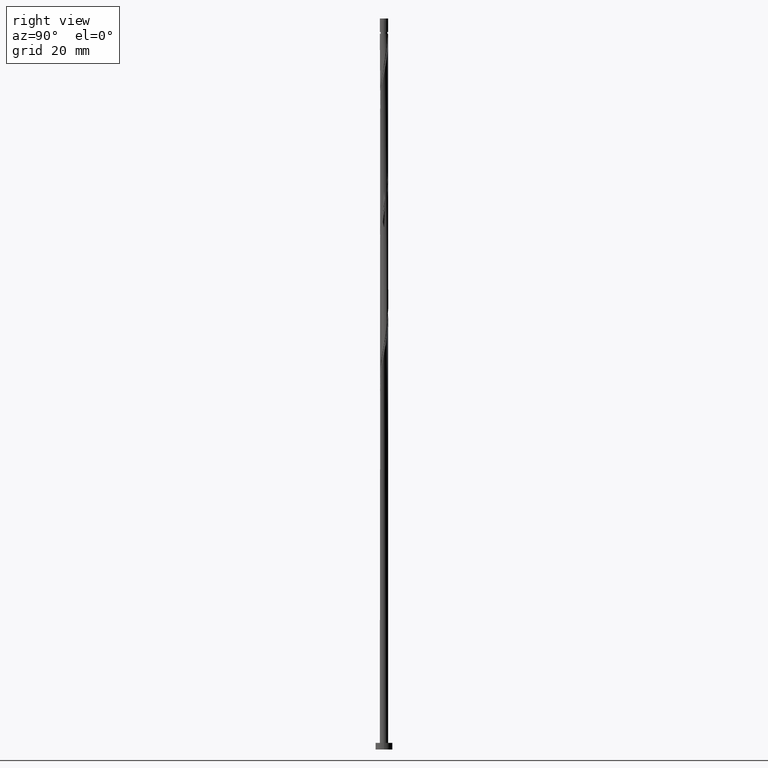
[diagram: clean part render]
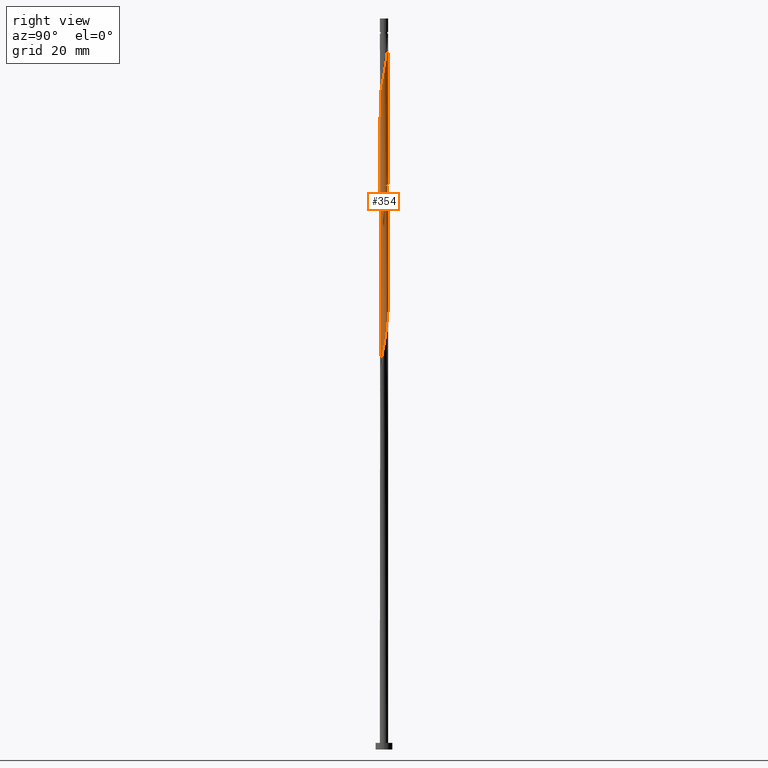
[diagram: same view with one face highlighted and labeled with its STEP entity id]
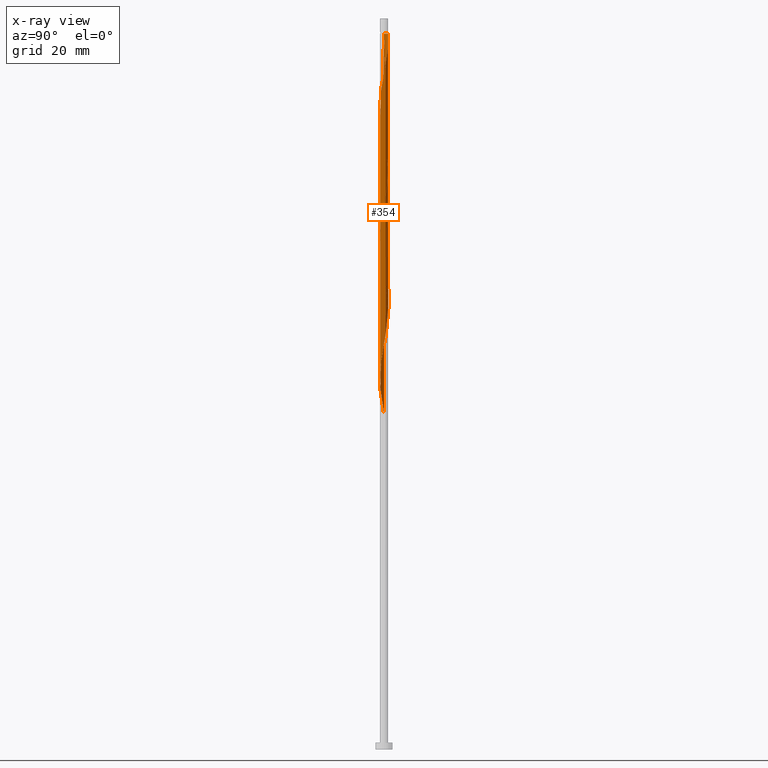
[diagram: x-ray of the same camera — body ghosted, the highlighted face saturated]
A machine part, right view. The second image highlights one B-rep face of the part: STEP entity #354.
The next image is the same camera in x-ray: the body ghosted, the highlighted face saturated — about 0% of this face is hidden behind the body in this view.
In plain terms, the highlighted cylindrical surface (bore or boss wall) has radius 1.25 mm, axis along (-0, -0, -1).
Its self-contained STEP definition (entity closure, byte-faithful):
#4 = CARTESIAN_POINT ( 'NONE',  ( -1.233997229160461506, 0.2505738245793969754, 140.4429008443030682 ) ) ;
#12 = CARTESIAN_POINT ( 'NONE',  ( 1.250000000000000666, 9.534410814969982364E-16, 162.6041560535283281 ) ) ;
#13 = CIRCLE ( 'NONE', #498, 1.249999999999986011 ) ;
#16 = CARTESIAN_POINT ( 'NONE',  ( -0.9985149540873560214, -0.7519759879570131478, 146.0518752032774614 ) ) ;
#23 = CARTESIAN_POINT ( 'NONE',  ( 1.209097744789171758, 0.3515950037838725395, 122.8146957160979582 ) ) ;
#26 = DIRECTION ( 'NONE',  ( -0.000000000000000000, -0.000000000000000000, -1.000000000000000000 ) ) ;
#32 = CARTESIAN_POINT ( 'NONE',  ( 0.3490314803447899239, -1.200282060904154680, 112.3980290494312868 ) ) ;
#41 = CARTESIAN_POINT ( 'NONE',  ( 1.186085250128970037, -0.3945906479207280659, 118.8082854596876814 ) ) ;
#48 =( BOUNDED_CURVE ( )  B_SPLINE_CURVE ( 2, ( #60, #718, #1391, #325, #857, #1277, #695, #1088, #1418, #1283, #1432, #1065, #279, #1189, #565, #1083, #1045, #295, #1624, #1313, #665, #1044, #914, #795, #264, #619, #1142, #266, #12 ),
 .UNSPECIFIED., .F., .T. ) 
 B_SPLINE_CURVE_WITH_KNOTS ( ( 3, 2, 2, 2, 2, 2, 2, 2, 2, 2, 2, 2, 2, 2, 3 ),
 ( 0.4295271625973832164, 0.4326923076923077094, 0.4423076923076922906, 0.4519230769230769273, 0.4615384615384615641, 0.4711538461538461453, 0.4807692307692307820, 0.4903846153846153633, 0.5000000000000000000, 0.5096153846153845812, 0.5192307692307692735, 0.5288461538461538547, 0.5384615384615384359, 0.5480769230769231282, 0.5545271625973832164 ),
 .UNSPECIFIED. ) 
 CURVE ( )  GEOMETRIC_REPRESENTATION_ITEM ( )  RATIONAL_B_SPLINE_CURVE ( ( 0.9061636035683098278, 0.9069090390690984771, 0.9090909090909551349, 0.9024626128164584538, 0.9090909090909551349, 0.9024626128164584538, 0.9090909090909551349, 0.9024626128164584538, 0.9090909090909551349, 0.9024626128164584538, 0.9090909090909551349, 0.9024626128164584538, 0.9090909090909551349, 0.9024626128164584538, 0.9090909090909551349, 0.9024626128164584538, 0.9090909090909551349, 0.9024626128164584538, 0.9090909090909551349, 0.9024626128164584538, 0.9090909090909551349, 0.9024626128164584538, 0.9090909090909551349, 0.9024626128164584538, 0.9090909090909551349, 0.9024626128164584538, 0.9090909090909551349, 0.9046444828383151116, 0.9061636035683098278 ) ) 
 REPRESENTATION_ITEM ( '' )  );
#58 = CARTESIAN_POINT ( 'NONE',  ( -1.250000000000000666, -1.491854868695303230E-15, 100.1041560535283423 ) ) ;
#60 = CARTESIAN_POINT ( 'NONE',  ( -1.250000000000000666, 8.375325578640295840E-16, 183.4374893868616141 ) ) ;
#64 = CARTESIAN_POINT ( 'NONE',  ( -1.250000000000000000, 0.000000000000000000, 217.9000000000000057 ) ) ;
#86 = CARTESIAN_POINT ( 'NONE',  ( 0.6718720440307895947, -1.064952749933035570, 194.9300803314825714 ) ) ;
#112 = CARTESIAN_POINT ( 'NONE',  ( 1.246051491411264145, 0.09927578129518525862, 202.1416187930209958 ) ) ;
#120 = CARTESIAN_POINT ( 'NONE',  ( 0.7574990085993099642, -1.005848723770679909, 156.4685418699441470 ) ) ;
#126 = CARTESIAN_POINT ( 'NONE',  ( 0.9762028196098186950, -0.7953392094734688111, 158.0711059725082066 ) ) ;
#132 = CARTESIAN_POINT ( 'NONE',  ( -0.9762028196098191390, 0.7953392094734682560, 137.2377726391748638 ) ) ;
#141 = CARTESIAN_POINT ( 'NONE',  ( -0.3974887887239260675, -1.194796663026319816, 150.0582854596876814 ) ) ;
#144 = DIRECTION ( 'NONE',  ( -1.000000000000000000, 0.000000000000000000, 0.000000000000000000 ) ) ;
#150 = CARTESIAN_POINT ( 'NONE',  ( 0.4947721086058742834, -1.157901966353689138, 113.1993111007133308 ) ) ;
#162 = EDGE_CURVE ( 'NONE', #741, #1337, #13, .T. ) ;
#184 = CARTESIAN_POINT ( 'NONE',  ( -0.2487468592766566011, -1.225000000000000089, 109.1929008443030966 ) ) ;
#190 = CARTESIAN_POINT ( 'NONE',  ( -0.3490314803447907566, -1.200282060904156012, 189.3211059725082350 ) ) ;
#201 = CARTESIAN_POINT ( 'NONE',  ( 1.209097744789172424, -0.3515950037838746489, 199.7377726391748638 ) ) ;
#211 = CARTESIAN_POINT ( 'NONE',  ( -0.05164296112715973525, -1.248932746214151956, 190.9236700750722662 ) ) ;
#212 = VERTEX_POINT ( 'NONE', #1428 ) ;
#243 = CARTESIAN_POINT ( 'NONE',  ( 0.5346804163773575258, -1.129874706479678581, 194.1287982802004990 ) ) ;
#244 = CYLINDRICAL_SURFACE ( 'NONE', #1056, 1.250000000000000000 ) ;
#249 = CARTESIAN_POINT ( 'NONE',  ( 0.6718720440307899278, 1.064952749933034015, 127.6223880237902364 ) ) ;
#259 = CARTESIAN_POINT ( 'NONE',  ( 1.138173271097478345, -0.5386074712620577687, 159.6736700750722662 ) ) ;
#264 = CARTESIAN_POINT ( 'NONE',  ( 1.149459557334893578, 0.4911646628692576400, 165.2826444340466594 ) ) ;
#266 = CARTESIAN_POINT ( 'NONE',  ( 1.250000000000000000, 0.1015705481713068542, 163.1438567908766402 ) ) ;
#270 = CARTESIAN_POINT ( 'NONE',  ( -0.5346804163773577478, -1.129874706479676583, 149.2570034084056942 ) ) ;
#279 = CARTESIAN_POINT ( 'NONE',  ( -0.3490314803447899794, 1.200282060904154680, 174.8980290494313010 ) ) ;
#281 = CARTESIAN_POINT ( 'NONE',  ( 0.9072085382940966447, 0.8732176539593845543, 126.0198239212261484 ) ) ;
#283 = CARTESIAN_POINT ( 'NONE',  ( 1.250000000000000000, 1.530808498934191571E-16, 217.9000000000000057 ) ) ;
#290 = CARTESIAN_POINT ( 'NONE',  ( -1.233601749225617716, -0.2018086328864490409, 142.8467469981493139 ) ) ;
#295 = CARTESIAN_POINT ( 'NONE',  ( 0.3974887887239262896, 1.194796663026319594, 170.8916187930209958 ) ) ;
#299 = CARTESIAN_POINT ( 'NONE',  ( 0.8668509141045649402, -0.9005939666220741380, 115.6031572545594770 ) ) ;
#307 = CARTESIAN_POINT ( 'NONE',  ( 0.7574990085993099642, -1.005848723770679909, 114.8018752032774472 ) ) ;
#314 = CARTESIAN_POINT ( 'NONE',  ( -1.250000000000000000, -0.1015705481713088942, 100.6438567908766402 ) ) ;
#315 = VECTOR ( 'NONE', #1041, 1000.000000000000000 ) ;
#317 = VECTOR ( 'NONE', #544, 1000.000000000000000 ) ;
#319 = CARTESIAN_POINT ( 'NONE',  ( -1.186085250128971591, -0.3945906479207275663, 182.9108495622517694 ) ) ;
#323 = CARTESIAN_POINT ( 'NONE',  ( 0.9762028196098186950, -0.7953392094734688111, 116.4044393058415494 ) ) ;
#325 = CARTESIAN_POINT ( 'NONE',  ( -1.233997229160461506, 0.2505738245793969754, 182.1095675109697538 ) ) ;
#328 = CARTESIAN_POINT ( 'NONE',  ( 0.6261355586025936226, 1.081875345062185190, 208.5518752032774330 ) ) ;
#329 = ORIENTED_EDGE ( 'NONE', *, *, #162, .T. ) ;
#334 = CARTESIAN_POINT ( 'NONE',  ( -0.7895402911624430642, -0.9690852019462093958, 105.9877726391748780 ) ) ;
#338 = CARTESIAN_POINT ( 'NONE',  ( -0.6261355586025935116, -1.081875345062185412, 187.7185418699441470 ) ) ;
#354 = ADVANCED_FACE ( 'NONE', ( #978 ), #244, .T. ) ;
#355 = ORIENTED_EDGE ( 'NONE', *, *, #1626, .F. ) ;
#363 = VERTEX_POINT ( 'NONE', #707 ) ;
#377 = CARTESIAN_POINT ( 'NONE',  ( 1.233997229160462838, 0.2505738245793968089, 202.9429008443030966 ) ) ;
#383 = EDGE_CURVE ( 'NONE', #363, #212, #1227, .T. ) ;
#387 = CARTESIAN_POINT ( 'NONE',  ( 0.5346804163773585250, 1.129874706479676583, 128.4236700750723230 ) ) ;
#391 = CARTESIAN_POINT ( 'NONE',  ( -1.186085250128970037, 0.3945906479207276774, 139.6416187930210242 ) ) ;
#401 = CARTESIAN_POINT ( 'NONE',  ( 0.2032908520837062305, 1.242662155454622219, 210.9557213571235650 ) ) ;
#405 = EDGE_LOOP ( 'NONE', ( #1534, #329, #355, #584, #998, #1200, #1414, #792 ) ) ;
#408 =( BOUNDED_CURVE ( )  B_SPLINE_CURVE ( 2, ( #1601, #927, #1191, #1204, #1492, #259, #537, #126, #1038, #120, #1583, #1594, #542, #1326, #1198, #1182, #951, #141, #270, #1333, #1716, #687, #16, #668, #558, #551, #290, #1049, #1343, #4, #391, #1067, #917, #132, #675, #1610, #1464, #938, #798, #529, #1458, #659, #822, #420, #387, #249, #1483, #281, #811, #1218, #1077, #23, #1619, #789, #1363, #911, #41, #580, #715, #323, #299, #307, #835, #150, #32, #1537, #1381, #449, #184, #974, #1225, #568, #334, #1124, #1518, #1649, #966, #865, #589, #314, #58 ),
 .UNSPECIFIED., .F., .T. ) 
 B_SPLINE_CURVE_WITH_KNOTS ( ( 3, 2, 2, 2, 2, 2, 2, 2, 2, 2, 2, 2, 2, 2, 2, 2, 2, 2, 2, 2, 2, 2, 2, 2, 2, 2, 2, 2, 2, 2, 2, 2, 2, 2, 2, 2, 2, 2, 2, 2, 3 ),
 ( 0.5545271625973832164, 0.5576923076923077094, 0.5673076923076922906, 0.5769230769230768718, 0.5865384615384615641, 0.5961538461538461453, 0.6057692307692307265, 0.6153846153846154188, 0.6250000000000000000, 0.6346153846153845812, 0.6442307692307692735, 0.6538461538461538547, 0.6634615384615384359, 0.6730769230769231282, 0.6826923076923077094, 0.6923076923076922906, 0.7019230769230768718, 0.7115384615384615641, 0.7211538461538461453, 0.7307692307692307265, 0.7403846153846154188, 0.7500000000000000000, 0.7596153846153845812, 0.7692307692307692735, 0.7788461538461538547, 0.7884615384615384359, 0.7980769230769231282, 0.8076923076923077094, 0.8173076923076922906, 0.8269230769230768718, 0.8365384615384615641, 0.8461538461538461453, 0.8557692307692307265, 0.8653846153846154188, 0.8750000000000000000, 0.8846153846153845812, 0.8942307692307692735, 0.9038461538461539657, 0.9134615384615385469, 0.9230769230769231282, 0.9295271625973831053 ),
 .UNSPECIFIED. ) 
 CURVE ( )  GEOMETRIC_REPRESENTATION_ITEM ( )  RATIONAL_B_SPLINE_CURVE ( ( 0.9061636035683098278, 0.9069090390690984771, 0.9090909090909551349, 0.9024626128164584538, 0.9090909090909551349, 0.9024626128164584538, 0.9090909090909551349, 0.9024626128164584538, 0.9090909090909551349, 0.9024626128164584538, 0.9090909090909551349, 0.9024626128164584538, 0.9090909090909551349, 0.9024626128164584538, 0.9090909090909551349, 0.9024626128164584538, 0.9090909090909551349, 0.9024626128164584538, 0.9090909090909551349, 0.9024626128164584538, 0.9090909090909551349, 0.9024626128164584538, 0.9090909090909551349, 0.9024626128164584538, 0.9090909090909551349, 0.9024626128164584538, 0.9090909090909551349, 0.9024626128164584538, 0.9090909090909551349, 0.9024626128164584538, 0.9090909090909551349, 0.9024626128164584538, 0.9090909090909551349, 0.9024626128164584538, 0.9090909090909551349, 0.9024626128164584538, 0.9090909090909551349, 0.9024626128164584538, 0.9090909090909551349, 0.9024626128164584538, 0.9090909090909551349, 0.9024626128164584538, 0.9090909090909551349, 0.9024626128164584538, 0.9090909090909551349, 0.9024626128164584538, 0.9090909090909551349, 0.9024626128164584538, 0.9090909090909551349, 0.9024626128164584538, 0.9090909090909551349, 0.9024626128164584538, 0.9090909090909551349, 0.9024626128164584538, 0.9090909090909551349, 0.9024626128164584538, 0.9090909090909551349, 0.9024626128164584538, 0.9090909090909551349, 0.9024626128164584538, 0.9090909090909551349, 0.9024626128164584538, 0.9090909090909551349, 0.9024626128164584538, 0.9090909090909551349, 0.9024626128164584538, 0.9090909090909551349, 0.9024626128164584538, 0.9090909090909551349, 0.9024626128164584538, 0.9090909090909551349, 0.9024626128164584538, 0.9090909090909551349, 0.9024626128164584538, 0.9090909090909551349, 0.9024626128164584538, 0.9090909090909551349, 0.9024626128164584538, 0.9090909090909551349, 0.9046444828383151116, 0.9061636035683097168 ) ) 
 REPRESENTATION_ITEM ( '' )  );
#411 = CARTESIAN_POINT ( 'NONE',  ( 0.3490314803447912562, 1.200282060904156012, 210.1544393058415494 ) ) ;
#420 = CARTESIAN_POINT ( 'NONE',  ( 0.3974887887239262896, 1.194796663026319594, 129.2249521263543670 ) ) ;
#439 = CARTESIAN_POINT ( 'NONE',  ( -1.250000000000000666, 8.375325578640295840E-16, 183.4374893868616141 ) ) ;
#449 = CARTESIAN_POINT ( 'NONE',  ( -0.1000049298293875233, -1.255203336973680139, 109.9941828955851406 ) ) ;
#453 = CARTESIAN_POINT ( 'NONE',  ( 1.233601749225618827, -0.2018086328864499290, 200.5390546904568794 ) ) ;
#465 = CARTESIAN_POINT ( 'NONE',  ( 0.8668509141045661615, 0.9005939666220745821, 206.9493111007133166 ) ) ;
#476 = CARTESIAN_POINT ( 'NONE',  ( 0.7895402911624437303, -0.9690852019462107281, 195.7313623827646154 ) ) ;
#487 = CARTESIAN_POINT ( 'NONE',  ( 0.2487468592766563791, -1.225000000000001421, 192.5262341776363826 ) ) ;
#498 = AXIS2_PLACEMENT_3D ( 'NONE', #1666, #750, #612 ) ;
#515 = CARTESIAN_POINT ( 'NONE',  ( 0.000000000000000000, 0.000000000000000000, 217.9000000000000057 ) ) ;
#529 = CARTESIAN_POINT ( 'NONE',  ( -0.2032908520837052591, 1.242662155454620887, 132.4300803314825714 ) ) ;
#537 = CARTESIAN_POINT ( 'NONE',  ( 1.057188045353648853, -0.6669733403677635675, 158.8723880237902790 ) ) ;
#542 = CARTESIAN_POINT ( 'NONE',  ( 0.3490314803447899239, -1.200282060904154680, 154.0646957160979582 ) ) ;
#544 = DIRECTION ( 'NONE',  ( -0.000000000000000000, -0.000000000000000000, -1.000000000000000000 ) ) ;
#551 = CARTESIAN_POINT ( 'NONE',  ( -1.209097744789171536, -0.3515950037838732611, 143.6480290494312442 ) ) ;
#558 = CARTESIAN_POINT ( 'NONE',  ( -1.149459557334893578, -0.4911646628692577510, 144.4493111007133734 ) ) ;
#565 = CARTESIAN_POINT ( 'NONE',  ( -0.05164296112715906911, 1.248932746214150402, 173.2954649468671846 ) ) ;
#568 = CARTESIAN_POINT ( 'NONE',  ( -0.6718720440307897057, -1.064952749933034015, 106.7890546904569362 ) ) ;
#580 = CARTESIAN_POINT ( 'NONE',  ( 1.138173271097478345, -0.5386074712620577687, 118.0070034084056374 ) ) ;
#584 = ORIENTED_EDGE ( 'NONE', *, *, #841, .T. ) ;
#589 = CARTESIAN_POINT ( 'NONE',  ( -1.233601749225617716, -0.2018086328864490409, 101.1800803314825856 ) ) ;
#601 = CARTESIAN_POINT ( 'NONE',  ( 1.258105753662064563, -0.05202226198902525772, 201.3403367417389518 ) ) ;
#612 = DIRECTION ( 'NONE',  ( -1.000000000000000000, 0.000000000000000000, 0.000000000000000000 ) ) ;
#616 = CARTESIAN_POINT ( 'NONE',  ( -1.250000000000001998, -0.04971641292096325160, 181.0458165507108674 ) ) ;
#619 = CARTESIAN_POINT ( 'NONE',  ( 1.209097744789171758, 0.3515950037838725395, 164.4813623827646438 ) ) ;
#621 = CARTESIAN_POINT ( 'NONE',  ( 0.9072085382940971998, -0.8732176539593857756, 196.5326444340465741 ) ) ;
#659 = CARTESIAN_POINT ( 'NONE',  ( 0.1000049298293872735, 1.255203336973680139, 130.8275162289184834 ) ) ;
#665 = CARTESIAN_POINT ( 'NONE',  ( 0.7895402911624438413, 0.9690852019462089517, 168.4877726391749206 ) ) ;
#668 = CARTESIAN_POINT ( 'NONE',  ( -1.089821369880615398, -0.6307343219546418522, 145.2505931519953890 ) ) ;
#675 = CARTESIAN_POINT ( 'NONE',  ( -0.8668509141045649402, 0.9005939666220741380, 136.4364905878928198 ) ) ;
#687 = CARTESIAN_POINT ( 'NONE',  ( -0.9072085382940965337, -0.8732176539593845543, 146.8531572545594770 ) ) ;
#695 = CARTESIAN_POINT ( 'NONE',  ( -1.057188045353648853, 0.6669733403677633454, 179.7057213571236503 ) ) ;
#707 = CARTESIAN_POINT ( 'NONE',  ( 1.250000000000000000, 1.530808498934191571E-16, 213.3595675109697822 ) ) ;
#715 = CARTESIAN_POINT ( 'NONE',  ( 1.057188045353648853, -0.6669733403677635675, 117.2057213571236076 ) ) ;
#718 = CARTESIAN_POINT ( 'NONE',  ( -1.250000000000000666, 0.04971641292096045522, 183.1733184712286686 ) ) ;
#731 = CARTESIAN_POINT ( 'NONE',  ( -1.246051491411264145, -0.09927578129518567496, 181.3082854596876814 ) ) ;
#740 = CARTESIAN_POINT ( 'NONE',  ( -1.138173271097479899, -0.5386074712620584348, 183.7121316135338418 ) ) ;
#741 = VERTEX_POINT ( 'NONE', #1658 ) ;
#746 = LINE ( 'NONE', #64, #317 ) ;
#750 = DIRECTION ( 'NONE',  ( -0.000000000000000000, -0.000000000000000000, -1.000000000000000000 ) ) ;
#766 = VERTEX_POINT ( 'NONE', #439 ) ;
#789 = CARTESIAN_POINT ( 'NONE',  ( 1.258105753662063231, 0.05202226198902452220, 121.2121316135338418 ) ) ;
#792 = ORIENTED_EDGE ( 'NONE', *, *, #1374, .F. ) ;
#795 = CARTESIAN_POINT ( 'NONE',  ( 1.089821369880615398, 0.6307343219546409641, 166.0839264853287034 ) ) ;
#798 = CARTESIAN_POINT ( 'NONE',  ( -0.3490314803447899794, 1.200282060904154680, 133.2313623827646438 ) ) ;
#806 = CARTESIAN_POINT ( 'NONE',  ( -0.1000049298293865518, 1.255203336973681694, 212.5582854596876814 ) ) ;
#811 = CARTESIAN_POINT ( 'NONE',  ( 0.9985149540873562435, 0.7519759879570129257, 125.2185418699441328 ) ) ;
#822 = CARTESIAN_POINT ( 'NONE',  ( 0.2487468592766567677, 1.225000000000000089, 130.0262341776364110 ) ) ;
#835 = CARTESIAN_POINT ( 'NONE',  ( 0.6261355586025919573, -1.081875345062184524, 114.0005931519953748 ) ) ;
#841 = EDGE_CURVE ( 'NONE', #1558, #1614, #746, .T. ) ;
#857 = CARTESIAN_POINT ( 'NONE',  ( -1.186085250128970037, 0.3945906479207276774, 181.3082854596876814 ) ) ;
#865 = CARTESIAN_POINT ( 'NONE',  ( -1.209097744789171536, -0.3515950037838732611, 101.9813623827646012 ) ) ;
#870 = CARTESIAN_POINT ( 'NONE',  ( 0.9985149540873564655, -0.7519759879570147021, 197.3339264853286750 ) ) ;
#882 = CARTESIAN_POINT ( 'NONE',  ( -1.057188045353650407, -0.6669733403677635675, 184.5134136648158290 ) ) ;
#888 = LINE ( 'NONE', #1605, #315 ) ;
#907 = CARTESIAN_POINT ( 'NONE',  ( 1.138173271097479899, 0.5386074712620579907, 204.5454649468671846 ) ) ;
#911 = CARTESIAN_POINT ( 'NONE',  ( 1.233997229160461506, -0.2505738245793971419, 119.6095675109697396 ) ) ;
#914 = CARTESIAN_POINT ( 'NONE',  ( 0.9985149540873562435, 0.7519759879570129257, 166.8852085366108042 ) ) ;
#917 = CARTESIAN_POINT ( 'NONE',  ( -1.057188045353648853, 0.6669733403677633454, 138.0390546904569646 ) ) ;
#927 = CARTESIAN_POINT ( 'NONE',  ( 1.250000000000000666, -0.04971641292096080217, 162.3399851378953542 ) ) ;
#938 = CARTESIAN_POINT ( 'NONE',  ( -0.4947721086058746165, 1.157901966353689138, 134.0326444340466594 ) ) ;
#951 = CARTESIAN_POINT ( 'NONE',  ( -0.2487468592766566011, -1.225000000000000089, 150.8595675109697254 ) ) ;
#966 = CARTESIAN_POINT ( 'NONE',  ( -1.149459557334893578, -0.4911646628692577510, 102.7826444340466594 ) ) ;
#974 = CARTESIAN_POINT ( 'NONE',  ( -0.3974887887239260675, -1.194796663026319816, 108.3916187930210242 ) ) ;
#978 = FACE_OUTER_BOUND ( 'NONE', #405, .T. ) ;
#987 = CARTESIAN_POINT ( 'NONE',  ( -1.250000000000000666, -1.491854868695303230E-15, 100.1041560535283281 ) ) ;
#998 = ORIENTED_EDGE ( 'NONE', *, *, #1651, .F. ) ;
#1001 = EDGE_CURVE ( 'NONE', #741, #766, #888, .T. ) ;
#1006 = CARTESIAN_POINT ( 'NONE',  ( 0.3974887887239255679, -1.194796663026321148, 193.3275162289184834 ) ) ;
#1031 = CARTESIAN_POINT ( 'NONE',  ( 1.186085250128971591, 0.3945906479207268447, 203.7441828955851406 ) ) ;
#1038 = CARTESIAN_POINT ( 'NONE',  ( 0.8668509141045649402, -0.9005939666220741380, 157.2698239212261626 ) ) ;
#1041 = DIRECTION ( 'NONE',  ( -0.000000000000000000, -0.000000000000000000, -1.000000000000000000 ) ) ;
#1044 = CARTESIAN_POINT ( 'NONE',  ( 0.9072085382940966447, 0.8732176539593845543, 167.6864905878928482 ) ) ;
#1045 = CARTESIAN_POINT ( 'NONE',  ( 0.2487468592766567677, 1.225000000000000089, 171.6929008443030966 ) ) ;
#1049 = CARTESIAN_POINT ( 'NONE',  ( -1.258105753662063453, -0.05202226198902504956, 142.0454649468672130 ) ) ;
#1055 = CARTESIAN_POINT ( 'NONE',  ( 0.05164296112716043607, 1.248932746214151956, 211.7570034084056658 ) ) ;
#1056 = AXIS2_PLACEMENT_3D ( 'NONE', #515, #1632, #144 ) ;
#1065 = CARTESIAN_POINT ( 'NONE',  ( -0.4947721086058746165, 1.157901966353689138, 175.6993111007132882 ) ) ;
#1067 = CARTESIAN_POINT ( 'NONE',  ( -1.138173271097478345, 0.5386074712620577687, 138.8403367417389802 ) ) ;
#1077 = CARTESIAN_POINT ( 'NONE',  ( 1.149459557334893578, 0.4911646628692576400, 123.6159777673800164 ) ) ;
#1083 = CARTESIAN_POINT ( 'NONE',  ( 0.1000049298293872735, 1.255203336973680139, 172.4941828955851122 ) ) ;
#1088 = CARTESIAN_POINT ( 'NONE',  ( -0.9762028196098191390, 0.7953392094734682560, 178.9044393058415494 ) ) ;
#1116 =( BOUNDED_CURVE ( )  B_SPLINE_CURVE ( 2, ( #1146, #616, #731, #1316, #319, #740, #882, #1394, #1258, #1138, #338, #1677, #190, #1673, #211, #1653, #487, #1006, #243, #86, #476, #621, #870, #1412, #1684, #201, #453, #601, #112, #377, #1031, #907, #1268, #1118, #465, #1533, #328, #1476, #411, #401, #1055, #806, #1352 ),
 .UNSPECIFIED., .F., .T. ) 
 B_SPLINE_CURVE_WITH_KNOTS ( ( 3, 2, 2, 2, 2, 2, 2, 2, 2, 2, 2, 2, 2, 2, 2, 2, 2, 2, 2, 2, 2, 3 ),
 ( 0.5545271625973834384, 0.5576923076923077094, 0.5673076923076922906, 0.5769230769230768718, 0.5865384615384615641, 0.5961538461538461453, 0.6057692307692308376, 0.6153846153846154188, 0.6250000000000000000, 0.6346153846153845812, 0.6442307692307691624, 0.6538461538461538547, 0.6634615384615384359, 0.6730769230769231282, 0.6826923076923077094, 0.6923076923076922906, 0.7019230769230768718, 0.7115384615384615641, 0.7211538461538461453, 0.7307692307692308376, 0.7403846153846154188, 0.7500000000000000000 ),
 .UNSPECIFIED. ) 
 CURVE ( )  GEOMETRIC_REPRESENTATION_ITEM ( )  RATIONAL_B_SPLINE_CURVE ( ( 0.9061636035683149348, 0.9069090390691035841, 0.9090909090909601309, 0.9024626128164634498, 0.9090909090909601309, 0.9024626128164634498, 0.9090909090909601309, 0.9024626128164634498, 0.9090909090909601309, 0.9024626128164634498, 0.9090909090909601309, 0.9024626128164634498, 0.9090909090909601309, 0.9024626128164634498, 0.9090909090909601309, 0.9024626128164634498, 0.9090909090909601309, 0.9024626128164634498, 0.9090909090909601309, 0.9024626128164634498, 0.9090909090909601309, 0.9024626128164634498, 0.9090909090909601309, 0.9024626128164634498, 0.9090909090909601309, 0.9024626128164634498, 0.9090909090909601309, 0.9024626128164634498, 0.9090909090909601309, 0.9024626128164634498, 0.9090909090909601309, 0.9024626128164634498, 0.9090909090909601309, 0.9024626128164634498, 0.9090909090909601309, 0.9024626128164634498, 0.9090909090909601309, 0.9024626128164634498, 0.9090909090909601309, 0.9024626128164634498, 0.9090909090909601309, 0.9024626128164634498, 0.9090909090909601309 ) ) 
 REPRESENTATION_ITEM ( '' )  );
#1118 = CARTESIAN_POINT ( 'NONE',  ( 0.9762028196098208044, 0.7953392094734684781, 206.1480290494312158 ) ) ;
#1124 = CARTESIAN_POINT ( 'NONE',  ( -0.9072085382940965337, -0.8732176539593845543, 105.1864905878928198 ) ) ;
#1129 = CARTESIAN_POINT ( 'NONE',  ( -1.250000000000001998, -4.225052635653340235E-16, 180.7816456350778651 ) ) ;
#1138 = CARTESIAN_POINT ( 'NONE',  ( -0.7574990085993116296, -1.005848723770680575, 186.9172598186620462 ) ) ;
#1142 = CARTESIAN_POINT ( 'NONE',  ( 1.233601749225617716, 0.2018086328864491241, 163.6800803314825998 ) ) ;
#1146 = CARTESIAN_POINT ( 'NONE',  ( -1.250000000000001998, -4.225052635653340235E-16, 180.7816456350778651 ) ) ;
#1182 = CARTESIAN_POINT ( 'NONE',  ( -0.1000049298293875233, -1.255203336973680139, 151.6608495622518546 ) ) ;
#1189 = CARTESIAN_POINT ( 'NONE',  ( -0.2032908520837052591, 1.242662155454620887, 174.0967469981492002 ) ) ;
#1191 = CARTESIAN_POINT ( 'NONE',  ( 1.246051491411262369, -0.09927578129518682681, 162.0775162289184834 ) ) ;
#1198 = CARTESIAN_POINT ( 'NONE',  ( 0.05164296112715868747, -1.248932746214150624, 152.4621316135338418 ) ) ;
#1200 = ORIENTED_EDGE ( 'NONE', *, *, #383, .F. ) ;
#1204 = CARTESIAN_POINT ( 'NONE',  ( 1.233997229160461506, -0.2505738245793971419, 161.2762341776364110 ) ) ;
#1218 = CARTESIAN_POINT ( 'NONE',  ( 1.089821369880615398, 0.6307343219546409641, 124.4172598186620320 ) ) ;
#1225 = CARTESIAN_POINT ( 'NONE',  ( -0.5346804163773577478, -1.129874706479676583, 107.5903367417389802 ) ) ;
#1227 = LINE ( 'NONE', #283, #1383 ) ;
#1258 = CARTESIAN_POINT ( 'NONE',  ( -0.8668509141045661615, -0.9005939666220745821, 186.1159777673799738 ) ) ;
#1268 = CARTESIAN_POINT ( 'NONE',  ( 1.057188045353650407, 0.6669733403677637895, 205.3467469981492570 ) ) ;
#1277 = CARTESIAN_POINT ( 'NONE',  ( -1.138173271097478345, 0.5386074712620577687, 180.5070034084056374 ) ) ;
#1283 = CARTESIAN_POINT ( 'NONE',  ( -0.7574990085993101863, 1.005848723770679909, 177.3018752032774614 ) ) ;
#1313 = CARTESIAN_POINT ( 'NONE',  ( 0.6718720440307899278, 1.064952749933034015, 169.2890546904569078 ) ) ;
#1316 = CARTESIAN_POINT ( 'NONE',  ( -1.233997229160462838, -0.2505738245793970309, 182.1095675109697538 ) ) ;
#1326 = CARTESIAN_POINT ( 'NONE',  ( 0.2032908520837048427, -1.242662155454620887, 153.2634136648159142 ) ) ;
#1333 = CARTESIAN_POINT ( 'NONE',  ( -0.6718720440307897057, -1.064952749933034015, 148.4557213571236218 ) ) ;
#1337 = VERTEX_POINT ( 'NONE', #1521 ) ;
#1343 = CARTESIAN_POINT ( 'NONE',  ( -1.246051491411262369, 0.09927578129518611905, 141.2441828955851406 ) ) ;
#1352 = CARTESIAN_POINT ( 'NONE',  ( -0.2487468592766894082, 1.225000000000331379, 213.3595675109697822 ) ) ;
#1363 = CARTESIAN_POINT ( 'NONE',  ( 1.246051491411262369, -0.09927578129518682681, 120.4108495622517978 ) ) ;
#1374 = EDGE_CURVE ( 'NONE', #766, #212, #48, .T. ) ;
#1381 = CARTESIAN_POINT ( 'NONE',  ( 0.05164296112715868747, -1.248932746214150624, 110.7954649468671846 ) ) ;
#1383 = VECTOR ( 'NONE', #26, 1000.000000000000000 ) ;
#1391 = CARTESIAN_POINT ( 'NONE',  ( -1.246051491411262369, 0.09927578129518611905, 182.9108495622517694 ) ) ;
#1394 = CARTESIAN_POINT ( 'NONE',  ( -0.9762028196098206934, -0.7953392094734689222, 185.3146957160979014 ) ) ;
#1412 = CARTESIAN_POINT ( 'NONE',  ( 1.089821369880616286, -0.6307343219546435176, 198.1352085366107190 ) ) ;
#1414 = ORIENTED_EDGE ( 'NONE', *, *, #383, .T. ) ;
#1418 = CARTESIAN_POINT ( 'NONE',  ( -0.8668509141045649402, 0.9005939666220741380, 178.1031572545595054 ) ) ;
#1428 = CARTESIAN_POINT ( 'NONE',  ( 1.250000000000000666, 9.534410814969982364E-16, 162.6041560535283281 ) ) ;
#1432 = CARTESIAN_POINT ( 'NONE',  ( -0.6261355586025921793, 1.081875345062184302, 176.5005931519953606 ) ) ;
#1458 = CARTESIAN_POINT ( 'NONE',  ( -0.05164296112715906911, 1.248932746214150402, 131.6287982802005558 ) ) ;
#1464 = CARTESIAN_POINT ( 'NONE',  ( -0.6261355586025921793, 1.081875345062184302, 134.8339264853287318 ) ) ;
#1476 = CARTESIAN_POINT ( 'NONE',  ( 0.4947721086058753381, 1.157901966353690026, 209.3531572545595054 ) ) ;
#1483 = CARTESIAN_POINT ( 'NONE',  ( 0.7895402911624438413, 0.9690852019462089517, 126.8211059725082066 ) ) ;
#1492 = CARTESIAN_POINT ( 'NONE',  ( 1.186085250128970037, -0.3945906479207280659, 160.4749521263543670 ) ) ;
#1518 = CARTESIAN_POINT ( 'NONE',  ( -0.9985149540873560214, -0.7519759879570131478, 104.3852085366107900 ) ) ;
#1521 = CARTESIAN_POINT ( 'NONE',  ( -0.2487468592766894082, 1.225000000000331379, 213.3595675109697822 ) ) ;
#1533 = CARTESIAN_POINT ( 'NONE',  ( 0.7574990085993122957, 1.005848723770679909, 207.7505931519953322 ) ) ;
#1534 = ORIENTED_EDGE ( 'NONE', *, *, #1001, .F. ) ;
#1537 = CARTESIAN_POINT ( 'NONE',  ( 0.2032908520837048427, -1.242662155454620887, 111.5967469981492286 ) ) ;
#1558 = VERTEX_POINT ( 'NONE', #1129 ) ;
#1583 = CARTESIAN_POINT ( 'NONE',  ( 0.6261355586025919573, -1.081875345062184524, 155.6672598186620462 ) ) ;
#1594 = CARTESIAN_POINT ( 'NONE',  ( 0.4947721086058742834, -1.157901966353689138, 154.8659777673799738 ) ) ;
#1601 = CARTESIAN_POINT ( 'NONE',  ( 1.250000000000000666, 9.534410814969982364E-16, 162.6041560535283281 ) ) ;
#1605 = CARTESIAN_POINT ( 'NONE',  ( -1.250000000000000000, 0.000000000000000000, 217.9000000000000057 ) ) ;
#1610 = CARTESIAN_POINT ( 'NONE',  ( -0.7574990085993101863, 1.005848723770679909, 135.6352085366107758 ) ) ;
#1614 = VERTEX_POINT ( 'NONE', #987 ) ;
#1619 = CARTESIAN_POINT ( 'NONE',  ( 1.233601749225617716, 0.2018086328864491241, 122.0134136648159000 ) ) ;
#1624 = CARTESIAN_POINT ( 'NONE',  ( 0.5346804163773585250, 1.129874706479676583, 170.0903367417390086 ) ) ;
#1626 = EDGE_CURVE ( 'NONE', #1558, #1337, #1116, .T. ) ;
#1632 = DIRECTION ( 'NONE',  ( -0.000000000000000000, -0.000000000000000000, -1.000000000000000000 ) ) ;
#1649 = CARTESIAN_POINT ( 'NONE',  ( -1.089821369880615398, -0.6307343219546418522, 103.5839264853286750 ) ) ;
#1651 = EDGE_CURVE ( 'NONE', #212, #1614, #408, .T. ) ;
#1653 = CARTESIAN_POINT ( 'NONE',  ( 0.1000049298293866490, -1.255203336973681472, 191.7249521263543386 ) ) ;
#1658 = CARTESIAN_POINT ( 'NONE',  ( -1.249999999999986011, 0.000000000000000000, 213.3595675109697254 ) ) ;
#1666 = CARTESIAN_POINT ( 'NONE',  ( 0.000000000000000000, 0.000000000000000000, 213.3595675109697254 ) ) ;
#1673 = CARTESIAN_POINT ( 'NONE',  ( -0.2032908520837060640, -1.242662155454622219, 190.1223880237902222 ) ) ;
#1677 = CARTESIAN_POINT ( 'NONE',  ( -0.4947721086058752826, -1.157901966353690026, 188.5198239212261910 ) ) ;
#1684 = CARTESIAN_POINT ( 'NONE',  ( 1.149459557334894910, -0.4911646628692586392, 198.9364905878928198 ) ) ;
#1716 = CARTESIAN_POINT ( 'NONE',  ( -0.7895402911624430642, -0.9690852019462093958, 147.6544393058415494 ) ) ;